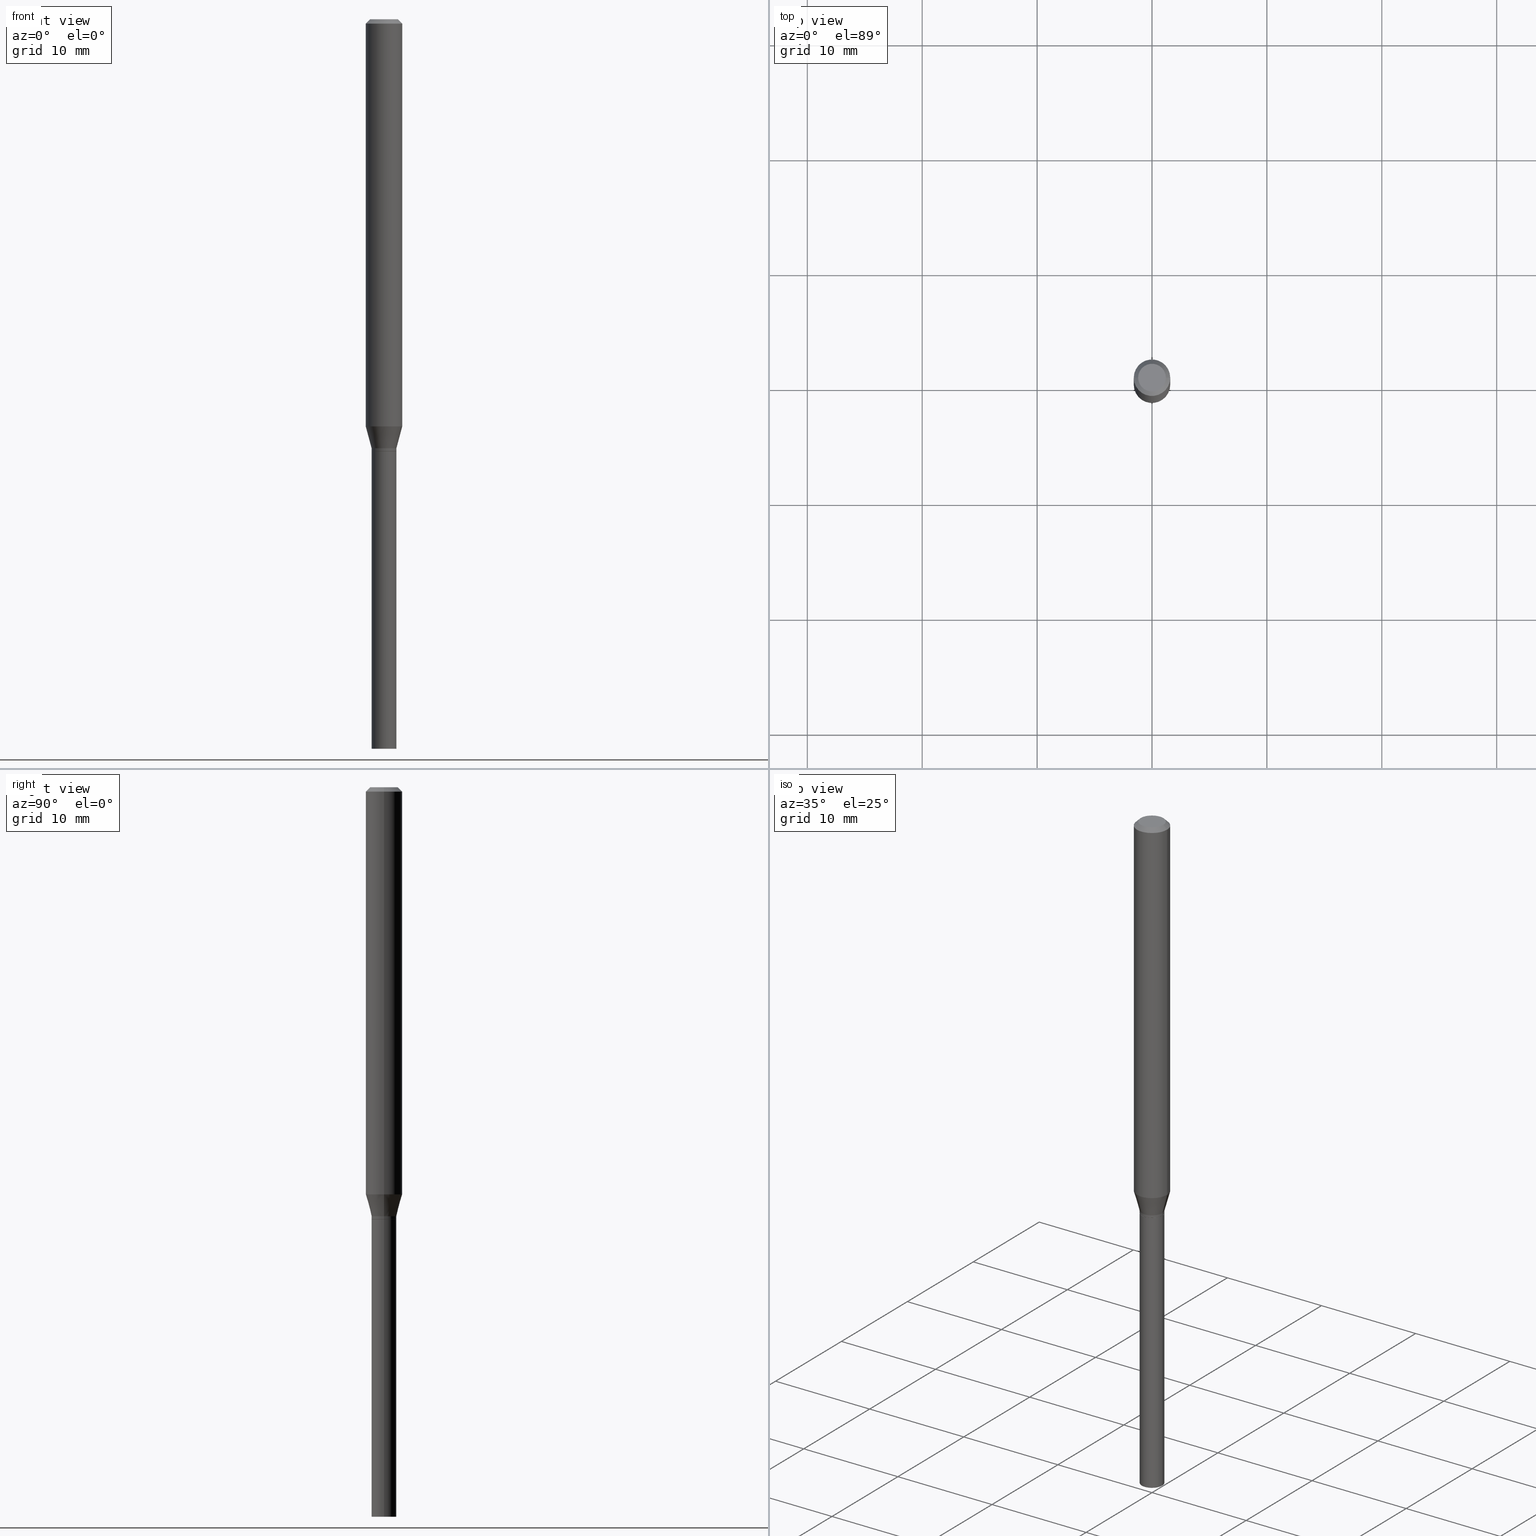
[diagram: canonical four-view strip — front | top / right | iso, engineering-drawing reading convention]
A machine part, canonical four-view strip (front | top / right | iso — engineering-drawing reading convention). The complete STEP part file that produces these views, byte-faithful:
ISO-10303-21;
HEADER;
FILE_DESCRIPTION (( 'STEP AP203' ),
    '1' );
FILE_NAME ('00657.STEP',
    '2024-03-19T22:22:21',
    ( '' ),
    ( '' ),
    'SwSTEP 2.0',
    'SolidWorks 2023',
    '' );
FILE_SCHEMA (( 'CONFIG_CONTROL_DESIGN' ));
ENDSEC;

DATA;
#1 = EDGE_CURVE ( 'NONE', #247, #172, #356, .T. ) ;
#2 = CARTESIAN_POINT ( 'NONE',  ( 6.113672015462842613E-29, -8.728703347107864943E-15, -2.500000000000000000 ) ) ;
#3 = VECTOR ( 'NONE', #42, 39.37007874015748143 ) ;
#4 = CIRCLE ( 'NONE', #323, 0.04249999999999999611 ) ;
#5 = CARTESIAN_POINT ( 'NONE',  ( 0.06250000000000000000, -4.811533449433679005E-16, -0.01499999999999999944 ) ) ;
#6 = CARTESIAN_POINT ( 'NONE',  ( 3.619293833154002365E-29, -5.167392381487854879E-15, -1.479999999999999982 ) ) ;
#7 = FACE_OUTER_BOUND ( 'NONE', #379, .T. ) ;
#8 = DIRECTION ( 'NONE',  ( 1.000000000000000000, -6.982962677686262766E-15, 0.000000000000000000 ) ) ;
#9 = CARTESIAN_POINT ( 'NONE',  ( 6.113672015462842613E-29, -8.728703347107864943E-15, -2.500000000000000000 ) ) ;
#10 = COORDINATED_UNIVERSAL_TIME_OFFSET ( 5, 0, .BEHIND. ) ;
#11 = CONICAL_SURFACE ( 'NONE', #221, 0.06250000000000000000, 0.7853981633974512766 ) ;
#12 = EDGE_CURVE ( 'NONE', #294, #452, #242, .T. ) ;
#13 = ORIENTED_EDGE ( 'NONE', *, *, #70, .F. ) ;
#14 = CARTESIAN_POINT ( 'NONE',  ( 0.000000000000000000, 0.000000000000000000, 0.000000000000000000 ) ) ;
#15 = CARTESIAN_POINT ( 'NONE',  ( 2.967759138017024946E-16, 0.04249999999999483358, -1.480000000000000426 ) ) ;
#16 = DIRECTION ( 'NONE',  ( -2.445468806185136597E-29, 3.491481338843145583E-15, 1.000000000000000000 ) ) ;
#17 = DIRECTION ( 'NONE',  ( 1.000000000000000000, -6.982962677686266711E-15, 0.000000000000000000 ) ) ;
#18 =( LENGTH_UNIT ( ) NAMED_UNIT ( * ) SI_UNIT ( $, .METRE. ) );
#19 = AXIS2_PLACEMENT_3D ( 'NONE', #14, #414, #176 ) ;
#20 = ORIENTED_EDGE ( 'NONE', *, *, #324, .F. ) ;
#21 = ORIENTED_EDGE ( 'NONE', *, *, #65, .T. ) ;
#22 = MECHANICAL_CONTEXT ( 'NONE', #173, 'mechanical' ) ;
#23 = CARTESIAN_POINT ( 'NONE',  ( -0.04250000000000020428, -4.830496905401379988E-15, -1.469999999999999973 ) ) ;
#24 = FACE_OUTER_BOUND ( 'NONE', #143, .T. ) ;
#25 =( NAMED_UNIT ( * ) SI_UNIT ( $, .STERADIAN. ) SOLID_ANGLE_UNIT ( ) );
#26 = DIRECTION ( 'NONE',  ( -0.2588190451025216277, 5.211531920934551831E-15, 0.9659258262890679791 ) ) ;
#27 = DIRECTION ( 'NONE',  ( -0.7071067811861793118, 7.493145998869024141E-15, 0.7071067811869157227 ) ) ;
#28 = ORIENTED_EDGE ( 'NONE', *, *, #49, .T. ) ;
#29 = ORIENTED_EDGE ( 'NONE', *, *, #450, .F. ) ;
#30 = CARTESIAN_POINT ( 'NONE',  ( -0.04249999999999999611, -6.646067201599817852E-15, -1.479999999999999982 ) ) ;
#31 = PERSON_AND_ORGANIZATION ( #120, #200 ) ;
#32 = EDGE_LOOP ( 'NONE', ( #94, #84, #264, #56 ) ) ;
#33 = DATE_AND_TIME ( #222, #38 ) ;
#34 = CARTESIAN_POINT ( 'NONE',  ( 3.619293833154002365E-29, -5.167392381487854879E-15, -1.479999999999999982 ) ) ;
#35 = CC_DESIGN_DATE_AND_TIME_ASSIGNMENT ( #301, #153, ( #68 ) ) ;
#36 = CARTESIAN_POINT ( 'NONE',  ( 0.04249999999999991979, -2.967759138016658126E-16, 2.072375129713268648E-30 ) ) ;
#37 = DATE_AND_TIME ( #148, #345 ) ;
#38 = LOCAL_TIME ( 18, 22, 21.00000000000000000, #230 ) ;
#39 = ORIENTED_EDGE ( 'NONE', *, *, #306, .T. ) ;
#40 = EDGE_CURVE ( 'NONE', #378, #407, #220, .T. ) ;
#41 = PERSON_AND_ORGANIZATION_ROLE ( 'creator' ) ;
#42 = DIRECTION ( 'NONE',  ( -2.445468806185136877E-29, 3.491481338843145188E-15, 1.000000000000000000 ) ) ;
#43 = AXIS2_PLACEMENT_3D ( 'NONE', #276, #274, #77 ) ;
#44 = DIRECTION ( 'NONE',  ( -2.445468806185136877E-29, 3.491481338843145188E-15, 1.000000000000000000 ) ) ;
#45 = EDGE_LOOP ( 'NONE', ( #170, #393, #291, #13 ) ) ;
#46 = FACE_OUTER_BOUND ( 'NONE', #32, .T. ) ;
#47 = DIRECTION ( 'NONE',  ( -2.445468806185136597E-29, 3.491481338843145583E-15, 1.000000000000000000 ) ) ;
#48 = AXIS2_PLACEMENT_3D ( 'NONE', #399, #403, #85 ) ;
#49 = EDGE_CURVE ( 'NONE', #442, #228, #311, .T. ) ;
#50 = FACE_OUTER_BOUND ( 'NONE', #139, .T. ) ;
#51 = ORIENTED_EDGE ( 'NONE', *, *, #273, .F. ) ;
#52 = CARTESIAN_POINT ( 'NONE',  ( 2.066805758436263276E-45, -2.950850862763961857E-31, -8.451572774957708509E-17 ) ) ;
#53 = DIRECTION ( 'NONE',  ( -2.445468806185136597E-29, 3.491481338843145583E-15, 1.000000000000000000 ) ) ;
#54 = ORIENTED_EDGE ( 'NONE', *, *, #212, .F. ) ;
#55 = CARTESIAN_POINT ( 'NONE',  ( 0.000000000000000000, 0.000000000000000000, 0.000000000000000000 ) ) ;
#56 = ORIENTED_EDGE ( 'NONE', *, *, #374, .F. ) ;
#57 = DIRECTION ( 'NONE',  ( 1.000000000000000000, -6.982962677686264344E-15, 0.000000000000000000 ) ) ;
#58 = AXIS2_PLACEMENT_3D ( 'NONE', #15, #87, #249 ) ;
#59 = DIRECTION ( 'NONE',  ( -2.445468806185136597E-29, 3.491481338843145583E-15, 1.000000000000000000 ) ) ;
#60 = ORIENTED_EDGE ( 'NONE', *, *, #343, .T. ) ;
#61 = CARTESIAN_POINT ( 'NONE',  ( 0.04250000000000020428, -5.429253481901091458E-15, -1.469999999999999973 ) ) ;
#62 = PLANE ( 'NONE',  #338 ) ;
#63 = LENGTH_MEASURE_WITH_UNIT ( LENGTH_MEASURE( 0.02539999999999999897 ), #18 );
#64 = CARTESIAN_POINT ( 'NONE',  ( 0.04249999999999999611, -2.967759138016663549E-16, 2.072375129713272502E-30 ) ) ;
#65 = EDGE_CURVE ( 'NONE', #98, #325, #283, .T. ) ;
#66 = AXIS2_PLACEMENT_3D ( 'NONE', #109, #371, #192 ) ;
#67 = AXIS2_PLACEMENT_3D ( 'NONE', #216, #422, #447 ) ;
#68 = SECURITY_CLASSIFICATION ( '', '', #189 ) ;
#69 = ORIENTED_EDGE ( 'NONE', *, *, #12, .F. ) ;
#70 = EDGE_CURVE ( 'NONE', #449, #442, #229, .T. ) ;
#71 = ADVANCED_FACE ( 'NONE', ( #154 ), #307, .T. ) ;
#72 = ORIENTED_EDGE ( 'NONE', *, *, #1, .F. ) ;
#73 = PERSON_AND_ORGANIZATION ( #120, #200 ) ;
#74 = DIRECTION ( 'NONE',  ( -2.445468806185136597E-29, 3.491481338843145583E-15, 1.000000000000000000 ) ) ;
#75 = DIRECTION ( 'NONE',  ( 1.000000000000000000, -6.982962677686263555E-15, 0.000000000000000000 ) ) ;
#76 = EDGE_LOOP ( 'NONE', ( #161, #142, #369, #297 ) ) ;
#77 = DIRECTION ( 'NONE',  ( 1.000000000000000000, -6.982962677686267499E-15, 4.876176775795935793E-29 ) ) ;
#78 = CIRCLE ( 'NONE', #199, 0.06250000000000000000 ) ;
#79 = LINE ( 'NONE', #196, #331 ) ;
#80 = CYLINDRICAL_SURFACE ( 'NONE', #385, 0.06250000000000000000 ) ;
#81 = CARTESIAN_POINT ( 'NONE',  ( -0.04250000000000020428, -4.629138774322960466E-15, -1.469999999999999973 ) ) ;
#82 = CARTESIAN_POINT ( 'NONE',  ( 3.668203209277705088E-31, -5.237222008264718399E-17, -0.01499999999999999944 ) ) ;
#83 = APPROVAL_PERSON_ORGANIZATION ( #131, #381, #424 ) ;
#84 = ORIENTED_EDGE ( 'NONE', *, *, #429, .T. ) ;
#85 = DIRECTION ( 'NONE',  ( 1.000000000000000000, -6.982962677686265133E-15, 0.000000000000000000 ) ) ;
#86 = CARTESIAN_POINT ( 'NONE',  ( 0.04199999999999999567, -5.460676813950679311E-15, -1.480000000000000426 ) ) ;
#87 = DIRECTION ( 'NONE',  ( 2.438088387897960049E-29, -3.491481338843145188E-15, -1.000000000000000000 ) ) ;
#88 = DIRECTION ( 'NONE',  ( -2.445468806185136597E-29, 3.491481338843145583E-15, 1.000000000000000000 ) ) ;
#89 = CARTESIAN_POINT ( 'NONE',  ( 3.594839145092150259E-29, -5.132477568099423229E-15, -1.469999999999999973 ) ) ;
#90 = CARTESIAN_POINT ( 'NONE',  ( 2.066805758436263276E-45, -2.950850862763961857E-31, -8.451572774957708509E-17 ) ) ;
#91 = ORIENTED_EDGE ( 'NONE', *, *, #273, .T. ) ;
#92 = EDGE_LOOP ( 'NONE', ( #364, #351, #418, #354 ) ) ;
#93 = VECTOR ( 'NONE', #423, 39.37007874015748143 ) ;
#94 = ORIENTED_EDGE ( 'NONE', *, *, #112, .F. ) ;
#95 = CARTESIAN_POINT ( 'NONE',  ( 3.316907271900976096E-16, 0.04749999999999999362, -2.081032274698379328E-16 ) ) ;
#96 = EDGE_CURVE ( 'NONE', #172, #325, #79, .T. ) ;
#97 = LINE ( 'NONE', #86, #122 ) ;
#98 = VERTEX_POINT ( 'NONE', #245 ) ;
#99 = ORIENTED_EDGE ( 'NONE', *, *, #267, .F. ) ;
#100 = DIRECTION ( 'NONE',  ( 1.000000000000000000, -6.982962677686276177E-15, 0.000000000000000000 ) ) ;
#101 = APPROVAL_ROLE ( '' ) ;
#102 = AXIS2_PLACEMENT_3D ( 'NONE', #241, #163, #234 ) ;
#103 = DIRECTION ( 'NONE',  ( 1.000000000000000000, -6.982962677686267499E-15, 4.876176775795935793E-29 ) ) ;
#104 = ORIENTED_EDGE ( 'NONE', *, *, #70, .T. ) ;
#105 = APPROVAL_DATE_TIME ( #33, #312 ) ;
#106 = ORIENTED_EDGE ( 'NONE', *, *, #1, .T. ) ;
#107 = CLOSED_SHELL ( 'NONE', ( #373, #191, #71, #327 ) ) ;
#108 = VECTOR ( 'NONE', #240, 39.37007874015748143 ) ;
#109 = CARTESIAN_POINT ( 'NONE',  ( 3.619293833154002365E-29, -5.167392381487854879E-15, -1.479999999999999982 ) ) ;
#110 = DIRECTION ( 'NONE',  ( 1.000000000000000000, -6.982962677686266711E-15, 4.876176775795935793E-29 ) ) ;
#111 = DIRECTION ( 'NONE',  ( -2.445468806185136597E-29, 3.491481338843145583E-15, 1.000000000000000000 ) ) ;
#112 = EDGE_CURVE ( 'NONE', #286, #225, #435, .T. ) ;
#113 = CARTESIAN_POINT ( 'NONE',  ( -0.04249999999999999611, -6.646067201599817852E-15, -2.500000000000000000 ) ) ;
#114 = PERSON_AND_ORGANIZATION_ROLE ( 'classification_officer' ) ;
#115 = CC_DESIGN_DATE_AND_TIME_ASSIGNMENT ( #390, #367, ( #127 ) ) ;
#116 = DIRECTION ( 'NONE',  ( 1.000000000000000000, -6.982962677686264344E-15, 0.000000000000000000 ) ) ;
#117 = CARTESIAN_POINT ( 'NONE',  ( 0.000000000000000000, 0.000000000000000000, 0.000000000000000000 ) ) ;
#118 = EDGE_CURVE ( 'NONE', #250, #281, #349, .T. ) ;
#119 = LINE ( 'NONE', #428, #412 ) ;
#120 = PERSON ( 'UNSPECIFIED', 'UNSPECIFIED', 'UNSPECIFIED', ('UNSPECIFIED'), ('UNSPECIFIED'), ('UNSPECIFIED') ) ;
#121 = EDGE_CURVE ( 'NONE', #325, #98, #425, .T. ) ;
#122 = VECTOR ( 'NONE', #287, 39.37007874015748143 ) ;
#123 = DIRECTION ( 'NONE',  ( 1.000000000000000000, -6.982962677686267499E-15, 4.876176775795935232E-29 ) ) ;
#124 = CARTESIAN_POINT ( 'NONE',  ( -0.04199999999999999567, -4.866315205294504490E-15, -1.480000000000000426 ) ) ;
#125 = DIRECTION ( 'NONE',  ( 1.000000000000000000, -6.982962677686265922E-15, 4.876176775795935793E-29 ) ) ;
#126 = ORIENTED_EDGE ( 'NONE', *, *, #290, .F. ) ;
#127 = PRODUCT_DEFINITION ( 'UNKNOWN', '', #209, #302 ) ;
#128 = CARTESIAN_POINT ( 'NONE',  ( 0.06250000000000000000, -4.888073874380388472E-16, -0.01499999999999999944 ) ) ;
#129 = ORIENTED_EDGE ( 'NONE', *, *, #310, .T. ) ;
#130 = FACE_OUTER_BOUND ( 'NONE', #214, .T. ) ;
#131 = PERSON_AND_ORGANIZATION ( #120, #200 ) ;
#132 = ORIENTED_EDGE ( 'NONE', *, *, #271, .T. ) ;
#133 = MANIFOLD_SOLID_BREP ( 'Body-Move/Copy2[1]', #107 ) ;
#134 = AXIS2_PLACEMENT_3D ( 'NONE', #82, #278, #198 ) ;
#135 = DIRECTION ( 'NONE',  ( 0.7071067811865496822, -7.319954787623263934E-15, -0.7071067811865454633 ) ) ;
#136 = CC_DESIGN_APPROVAL ( #312, ( #209 ) ) ;
#137 = CARTESIAN_POINT ( 'NONE',  ( 3.619293833154002926E-29, -5.167392381487856456E-15, -1.480000000000000426 ) ) ;
#138 = ADVANCED_FACE ( 'NONE', ( #24 ), #260, .F. ) ;
#139 = EDGE_LOOP ( 'NONE', ( #251, #60, #51, #99 ) ) ;
#140 = MANIFOLD_SOLID_BREP ( 'Body-Move/Copy2[2]', #259 ) ;
#141 = ORIENTED_EDGE ( 'NONE', *, *, #40, .T. ) ;
#142 = ORIENTED_EDGE ( 'NONE', *, *, #453, .T. ) ;
#143 = EDGE_LOOP ( 'NONE', ( #69, #300 ) ) ;
#144 = CARTESIAN_POINT ( 'NONE',  ( -0.04249999999999964917, -4.863665978120394078E-15, -1.479500000000000259 ) ) ;
#145 = EDGE_CURVE ( 'NONE', #247, #98, #169, .T. ) ;
#146 = AXIS2_PLACEMENT_3D ( 'NONE', #6, #152, #100 ) ;
#147 = AXIS2_PLACEMENT_3D ( 'NONE', #137, #190, #235 ) ;
#148 = CALENDAR_DATE ( 2024, 19, 3 ) ;
#149 = ORIENTED_EDGE ( 'NONE', *, *, #232, .T. ) ;
#150 = CARTESIAN_POINT ( 'NONE',  ( 3.412306868431998171E-29, -4.871869853094602771E-15, -1.395358983848623335 ) ) ;
#151 = LOCAL_TIME ( 18, 22, 21.00000000000000000, #10 ) ;
#152 = DIRECTION ( 'NONE',  ( -2.445468806185136597E-29, 3.491481338843145583E-15, 1.000000000000000000 ) ) ;
#153 = DATE_TIME_ROLE ( 'classification_date' ) ;
#154 = FACE_OUTER_BOUND ( 'NONE', #92, .T. ) ;
#155 = PERSON_AND_ORGANIZATION_ROLE ( 'creator' ) ;
#156 = EDGE_CURVE ( 'NONE', #378, #281, #440, .T. ) ;
#157 = CC_DESIGN_APPROVAL ( #319, ( #68 ) ) ;
#158 = CC_DESIGN_PERSON_AND_ORGANIZATION_ASSIGNMENT ( #31, #451, ( #246 ) ) ;
#159 = ADVANCED_BREP_SHAPE_REPRESENTATION ( '00657', ( #133, #140, #19 ), #444 ) ;
#160 = DIRECTION ( 'NONE',  ( -2.445468806185136597E-29, 3.491481338843145583E-15, 1.000000000000000000 ) ) ;
#161 = ORIENTED_EDGE ( 'NONE', *, *, #310, .F. ) ;
#162 = PRODUCT_DEFINITION_SHAPE ( 'NONE', 'NONE',  #127 ) ;
#163 = DIRECTION ( 'NONE',  ( -2.445468806185136597E-29, 3.491481338843145583E-15, 1.000000000000000000 ) ) ;
#164 = FACE_OUTER_BOUND ( 'NONE', #458, .T. ) ;
#165 = ADVANCED_FACE ( 'NONE', ( #50 ), #357, .T. ) ;
#166 = ORIENTED_EDGE ( 'NONE', *, *, #145, .F. ) ;
#167 = AXIS2_PLACEMENT_3D ( 'NONE', #406, #411, #75 ) ;
#168 = AXIS2_PLACEMENT_3D ( 'NONE', #284, #446, #125 ) ;
#169 = LINE ( 'NONE', #64, #315 ) ;
#170 = ORIENTED_EDGE ( 'NONE', *, *, #343, .F. ) ;
#171 = DIRECTION ( 'NONE',  ( 1.000000000000000000, -6.982962677686266711E-15, 4.876176775795935793E-29 ) ) ;
#172 = VERTEX_POINT ( 'NONE', #113 ) ;
#173 = APPLICATION_CONTEXT ( 'configuration controlled 3d designs of mechanical parts and assemblies' ) ;
#174 = CARTESIAN_POINT ( 'NONE',  ( 3.618071098750910124E-29, -5.165646640818434953E-15, -1.479500000000000259 ) ) ;
#175 = ADVANCED_FACE ( 'NONE', ( #194 ), #80, .T. ) ;
#176 = DIRECTION ( 'NONE',  ( 1.000000000000000000, 0.000000000000000000, 0.000000000000000000 ) ) ;
#177 = ORIENTED_EDGE ( 'NONE', *, *, #156, .F. ) ;
#178 = ORIENTED_EDGE ( 'NONE', *, *, #118, .F. ) ;
#179 = ORIENTED_EDGE ( 'NONE', *, *, #293, .T. ) ;
#180 = AXIS2_PLACEMENT_3D ( 'NONE', #55, #202, #123 ) ;
#181 = LOCAL_TIME ( 18, 22, 21.00000000000000000, #224 ) ;
#182 = COORDINATED_UNIVERSAL_TIME_OFFSET ( 5, 0, .BEHIND. ) ;
#183 = DIRECTION ( 'NONE',  ( -2.438088387897960049E-29, 3.491481338843145188E-15, 1.000000000000000000 ) ) ;
#184 = PERSON_AND_ORGANIZATION ( #120, #200 ) ;
#185 = PRODUCT_RELATED_PRODUCT_CATEGORY ( 'detail', '', ( #246 ) ) ;
#186 = PERSON_AND_ORGANIZATION ( #120, #200 ) ;
#187 = AXIS2_PLACEMENT_3D ( 'NONE', #197, #346, #116 ) ;
#188 = CIRCLE ( 'NONE', #134, 0.06250000000000000000 ) ;
#189 = SECURITY_CLASSIFICATION_LEVEL ( 'unclassified' ) ;
#190 = DIRECTION ( 'NONE',  ( -2.445468806185136597E-29, 3.491481338843145583E-15, 1.000000000000000000 ) ) ;
#191 = ADVANCED_FACE ( 'NONE', ( #7 ), #372, .F. ) ;
#192 = DIRECTION ( 'NONE',  ( 1.000000000000000000, -6.982962677686276177E-15, 0.000000000000000000 ) ) ;
#193 = CIRCLE ( 'NONE', #208, 0.04199999999999999567 ) ;
#194 = FACE_OUTER_BOUND ( 'NONE', #391, .T. ) ;
#195 = PERSON_AND_ORGANIZATION ( #120, #200 ) ;
#196 = CARTESIAN_POINT ( 'NONE',  ( -0.04249999999999999611, 3.019806626980425514E-16, -2.090547413358334859E-30 ) ) ;
#197 = CARTESIAN_POINT ( 'NONE',  ( 3.618071098750910124E-29, -5.165646640818434953E-15, -1.479500000000000259 ) ) ;
#198 = DIRECTION ( 'NONE',  ( 1.000000000000000000, -6.982962677686266711E-15, 0.000000000000000000 ) ) ;
#199 = AXIS2_PLACEMENT_3D ( 'NONE', #402, #339, #201 ) ;
#200 = ORGANIZATION ( 'UNSPECIFIED', 'UNSPECIFIED', '' ) ;
#201 = DIRECTION ( 'NONE',  ( 1.000000000000000000, -6.982962677686262766E-15, 0.000000000000000000 ) ) ;
#202 = DIRECTION ( 'NONE',  ( -2.445468806185136597E-29, 3.491481338843145583E-15, 1.000000000000000000 ) ) ;
#203 = APPLICATION_PROTOCOL_DEFINITION ( 'international standard', 'config_control_design', 1994, #341 ) ;
#204 = CARTESIAN_POINT ( 'NONE',  ( -0.04749999999999999362, 3.578768372314209027E-16, -8.451572774957950098E-17 ) ) ;
#205 = LINE ( 'NONE', #5, #430 ) ;
#206 =( NAMED_UNIT ( * ) PLANE_ANGLE_UNIT ( ) SI_UNIT ( $, .RADIAN. ) );
#207 = ORIENTED_EDGE ( 'NONE', *, *, #389, .T. ) ;
#208 = AXIS2_PLACEMENT_3D ( 'NONE', #348, #248, #380 ) ;
#209 = PRODUCT_DEFINITION_FORMATION_WITH_SPECIFIED_SOURCE ( 'ANY', '', #246, .NOT_KNOWN. ) ;
#210 = DIRECTION ( 'NONE',  ( -1.000000000000000000, 6.982962677686265922E-15, -4.876176775795935793E-29 ) ) ;
#211 = LINE ( 'NONE', #320, #270 ) ;
#212 = EDGE_CURVE ( 'NONE', #228, #360, #188, .T. ) ;
#213 =( CONVERSION_BASED_UNIT ( 'INCH', #63 ) LENGTH_UNIT ( ) NAMED_UNIT ( #421 ) );
#214 = EDGE_LOOP ( 'NONE', ( #21, #464 ) ) ;
#215 = CC_DESIGN_PERSON_AND_ORGANIZATION_ASSIGNMENT ( #333, #114, ( #68 ) ) ;
#216 = CARTESIAN_POINT ( 'NONE',  ( 0.000000000000000000, 0.000000000000000000, 0.000000000000000000 ) ) ;
#217 = DIRECTION ( 'NONE',  ( -2.445468806185136877E-29, 3.491481338843145188E-15, 1.000000000000000000 ) ) ;
#218 = UNCERTAINTY_MEASURE_WITH_UNIT (LENGTH_MEASURE( 1.000000000000000082E-05 ), #213, 'distance_accuracy_value', 'NONE');
#219 = LINE ( 'NONE', #362, #93 ) ;
#220 = CIRCLE ( 'NONE', #187, 0.04249999999999964917 ) ;
#221 = AXIS2_PLACEMENT_3D ( 'NONE', #413, #298, #313 ) ;
#222 = CALENDAR_DATE ( 2024, 19, 3 ) ;
#223 = EDGE_LOOP ( 'NONE', ( #149, #295, #178, #382 ) ) ;
#224 = COORDINATED_UNIVERSAL_TIME_OFFSET ( 5, 0, .BEHIND. ) ;
#225 = VERTEX_POINT ( 'NONE', #204 ) ;
#226 = EDGE_LOOP ( 'NONE', ( #106, #244, #252, #166 ) ) ;
#227 = APPROVAL_STATUS ( 'not_yet_approved' ) ;
#228 = VERTEX_POINT ( 'NONE', #128 ) ;
#229 = CIRCLE ( 'NONE', #337, 0.06250000000000000000 ) ;
#230 = COORDINATED_UNIVERSAL_TIME_OFFSET ( 5, 0, .BEHIND. ) ;
#231 = VECTOR ( 'NONE', #439, 39.37007874015748143 ) ;
#232 = EDGE_CURVE ( 'NONE', #407, #378, #417, .T. ) ;
#233 = CC_DESIGN_PERSON_AND_ORGANIZATION_ASSIGNMENT ( #195, #155, ( #209 ) ) ;
#234 = DIRECTION ( 'NONE',  ( 1.000000000000000000, -6.982962677686265133E-15, 0.000000000000000000 ) ) ;
#235 = DIRECTION ( 'NONE',  ( 1.000000000000000000, -6.982962677686263555E-15, 0.000000000000000000 ) ) ;
#236 = AXIS2_PLACEMENT_3D ( 'NONE', #288, #415, #448 ) ;
#237 = APPROVAL_STATUS ( 'not_yet_approved' ) ;
#238 = CARTESIAN_POINT ( 'NONE',  ( 0.06250000000000000000, -4.364351673553916694E-16, 3.047610484872459871E-30 ) ) ;
#239 = DIRECTION ( 'NONE',  ( -2.445468806185136597E-29, 3.491481338843145583E-15, 1.000000000000000000 ) ) ;
#240 = DIRECTION ( 'NONE',  ( -2.445468806185136877E-29, 3.491481338843145188E-15, 1.000000000000000000 ) ) ;
#241 = CARTESIAN_POINT ( 'NONE',  ( 3.594839145092150259E-29, -5.132477568099423229E-15, -1.469999999999999973 ) ) ;
#242 = CIRCLE ( 'NONE', #167, 0.04199999999999999567 ) ;
#243 = AXIS2_PLACEMENT_3D ( 'NONE', #89, #53, #355 ) ;
#244 = ORIENTED_EDGE ( 'NONE', *, *, #96, .T. ) ;
#245 = CARTESIAN_POINT ( 'NONE',  ( 0.04249999999999999611, -5.464168295289522318E-15, -1.479999999999999982 ) ) ;
#246 = PRODUCT ( '00657', '00657', '', ( #22 ) ) ;
#247 = VERTEX_POINT ( 'NONE', #254 ) ;
#248 = DIRECTION ( 'NONE',  ( -2.445468806185136597E-29, 3.491481338843145583E-15, 1.000000000000000000 ) ) ;
#249 = DIRECTION ( 'NONE',  ( -1.000000000000000000, 6.982962677686265922E-15, -4.876176775795935793E-29 ) ) ;
#250 = VERTEX_POINT ( 'NONE', #61 ) ;
#251 = ORIENTED_EDGE ( 'NONE', *, *, #118, .T. ) ;
#252 = ORIENTED_EDGE ( 'NONE', *, *, #65, .F. ) ;
#253 = AXIS2_PLACEMENT_3D ( 'NONE', #90, #59, #282 ) ;
#254 = CARTESIAN_POINT ( 'NONE',  ( 0.04249999999999999611, -9.025479260909530016E-15, -2.500000000000000000 ) ) ;
#255 = FACE_OUTER_BOUND ( 'NONE', #459, .T. ) ;
#256 = LINE ( 'NONE', #23, #377 ) ;
#257 = FACE_OUTER_BOUND ( 'NONE', #226, .T. ) ;
#258 = ORIENTED_EDGE ( 'NONE', *, *, #271, .F. ) ;
#259 = CLOSED_SHELL ( 'NONE', ( #433, #332, #305, #434, #165, #437, #175, #431, #441, #138, #316, #410 ) ) ;
#260 = PLANE ( 'NONE',  #275 ) ;
#261 = CONICAL_SURFACE ( 'NONE', #147, 0.04199999999999999567, 0.7853981633969275844 ) ;
#262 = APPROVAL_ROLE ( '' ) ;
#263 = CARTESIAN_POINT ( 'NONE',  ( -0.06250000000000000000, -2.018031826738562901E-15, -0.01499999999999999944 ) ) ;
#264 = ORIENTED_EDGE ( 'NONE', *, *, #212, .T. ) ;
#265 = PERSON_AND_ORGANIZATION ( #120, #200 ) ;
#266 = DATE_AND_TIME ( #335, #462 ) ;
#267 = EDGE_CURVE ( 'NONE', #250, #442, #321, .T. ) ;
#268 = EDGE_LOOP ( 'NONE', ( #39, #303 ) ) ;
#269 = CARTESIAN_POINT ( 'NONE',  ( 0.04199999999999999567, -5.460676813950679311E-15, -1.480000000000000426 ) ) ;
#270 = VECTOR ( 'NONE', #27, 39.37007874015748143 ) ;
#271 = EDGE_CURVE ( 'NONE', #449, #360, #119, .T. ) ;
#272 = CYLINDRICAL_SURFACE ( 'NONE', #180, 0.04249999999999991979 ) ;
#273 = EDGE_CURVE ( 'NONE', #442, #449, #78, .T. ) ;
#274 = DIRECTION ( 'NONE',  ( -2.445468806185136597E-29, 3.491481338843145583E-15, 1.000000000000000000 ) ) ;
#275 = AXIS2_PLACEMENT_3D ( 'NONE', #34, #183, #330 ) ;
#276 = CARTESIAN_POINT ( 'NONE',  ( 0.000000000000000000, 0.000000000000000000, 0.000000000000000000 ) ) ;
#277 = CC_DESIGN_SECURITY_CLASSIFICATION ( #68, ( #209 ) ) ;
#278 = DIRECTION ( 'NONE',  ( -2.445468806185136597E-29, 3.491481338843145583E-15, 1.000000000000000000 ) ) ;
#279 = CARTESIAN_POINT ( 'NONE',  ( 3.668203209277705088E-31, -5.237222008264718399E-17, -0.01499999999999999944 ) ) ;
#280 = DIRECTION ( 'NONE',  ( -1.000000000000000000, 6.982962677686266711E-15, 0.000000000000000000 ) ) ;
#281 = VERTEX_POINT ( 'NONE', #81 ) ;
#282 = DIRECTION ( 'NONE',  ( 1.000000000000000000, -6.982962677686267499E-15, 4.884662768193073002E-29 ) ) ;
#283 = CIRCLE ( 'NONE', #66, 0.04249999999999999611 ) ;
#284 = CARTESIAN_POINT ( 'NONE',  ( 6.198122052593289668E-29, -8.607766087339451973E-15, -2.500000000000000000 ) ) ;
#285 = CONICAL_SURFACE ( 'NONE', #436, 0.06250000000000000000, 0.7853981633974512766 ) ;
#286 = VERTEX_POINT ( 'NONE', #347 ) ;
#287 = DIRECTION ( 'NONE',  ( 0.7071067811861793118, -2.468850131078399925E-15, 0.7071067811869157227 ) ) ;
#288 = CARTESIAN_POINT ( 'NONE',  ( 3.619293833154002926E-29, -5.167392381487856456E-15, -1.480000000000000426 ) ) ;
#289 = ORIENTED_EDGE ( 'NONE', *, *, #429, .F. ) ;
#290 = EDGE_CURVE ( 'NONE', #172, #247, #4, .T. ) ;
#291 = ORIENTED_EDGE ( 'NONE', *, *, #267, .T. ) ;
#292 = CYLINDRICAL_SURFACE ( 'NONE', #67, 0.04249999999999991979 ) ;
#293 = EDGE_CURVE ( 'NONE', #360, #228, #401, .T. ) ;
#294 = VERTEX_POINT ( 'NONE', #269 ) ;
#295 = ORIENTED_EDGE ( 'NONE', *, *, #156, .T. ) ;
#296 = CIRCLE ( 'NONE', #253, 0.04749999999999999362 ) ;
#297 = ORIENTED_EDGE ( 'NONE', *, *, #40, .F. ) ;
#298 = DIRECTION ( 'NONE',  ( 2.445468806185136597E-29, -3.491481338843145583E-15, -1.000000000000000000 ) ) ;
#299 = FACE_OUTER_BOUND ( 'NONE', #223, .T. ) ;
#300 = ORIENTED_EDGE ( 'NONE', *, *, #453, .F. ) ;
#301 = DATE_AND_TIME ( #427, #181 ) ;
#302 = DESIGN_CONTEXT ( 'detailed design', #341, 'design' ) ;
#303 = ORIENTED_EDGE ( 'NONE', *, *, #112, .T. ) ;
#304 = CC_DESIGN_PERSON_AND_ORGANIZATION_ASSIGNMENT ( #265, #41, ( #127 ) ) ;
#305 = ADVANCED_FACE ( 'NONE', ( #46 ), #285, .T. ) ;
#306 = EDGE_CURVE ( 'NONE', #225, #286, #296, .T. ) ;
#307 = CYLINDRICAL_SURFACE ( 'NONE', #43, 0.04249999999999999611 ) ;
#308 = DIRECTION ( 'NONE',  ( 1.000000000000000000, -6.982962677686254089E-15, 0.000000000000000000 ) ) ;
#309 = CIRCLE ( 'NONE', #48, 0.04250000000000020428 ) ;
#310 = EDGE_CURVE ( 'NONE', #452, #378, #211, .T. ) ;
#311 = LINE ( 'NONE', #238, #3 ) ;
#312 = APPROVAL ( #237, 'UNSPECIFIED' ) ;
#313 = DIRECTION ( 'NONE',  ( -1.000000000000000000, 6.982962677686266711E-15, 0.000000000000000000 ) ) ;
#314 = AXIS2_PLACEMENT_3D ( 'NONE', #466, #404, #370 ) ;
#315 = VECTOR ( 'NONE', #217, 39.37007874015748143 ) ;
#316 = ADVANCED_FACE ( 'NONE', ( #322 ), #261, .T. ) ;
#317 = DIRECTION ( 'NONE',  ( 1.000000000000000000, -6.982962677686254089E-15, 0.000000000000000000 ) ) ;
#318 = ORIENTED_EDGE ( 'NONE', *, *, #374, .T. ) ;
#319 = APPROVAL ( #463, 'UNSPECIFIED' ) ;
#320 = CARTESIAN_POINT ( 'NONE',  ( -0.04199999999999999567, -4.868964432468614113E-15, -1.480000000000000426 ) ) ;
#321 = LINE ( 'NONE', #419, #231 ) ;
#322 = FACE_OUTER_BOUND ( 'NONE', #76, .T. ) ;
#323 = AXIS2_PLACEMENT_3D ( 'NONE', #9, #111, #317 ) ;
#324 = EDGE_CURVE ( 'NONE', #281, #250, #309, .T. ) ;
#325 = VERTEX_POINT ( 'NONE', #30 ) ;
#326 = ORIENTED_EDGE ( 'NONE', *, *, #12, .T. ) ;
#327 = ADVANCED_FACE ( 'NONE', ( #130 ), #438, .F. ) ;
#328 = DIRECTION ( 'NONE',  ( -2.445468806185136597E-29, 3.491481338843145583E-15, 1.000000000000000000 ) ) ;
#329 = ORIENTED_EDGE ( 'NONE', *, *, #232, .F. ) ;
#330 = DIRECTION ( 'NONE',  ( 1.000000000000000000, -6.982962677686265922E-15, 4.876176775795935793E-29 ) ) ;
#331 = VECTOR ( 'NONE', #44, 39.37007874015748143 ) ;
#332 = ADVANCED_FACE ( 'NONE', ( #383 ), #366, .T. ) ;
#333 = PERSON_AND_ORGANIZATION ( #120, #200 ) ;
#334 = DIRECTION ( 'NONE',  ( 1.000000000000000000, -6.982962677686267499E-15, 4.884662768193073002E-29 ) ) ;
#335 = CALENDAR_DATE ( 2024, 19, 3 ) ;
#336 = FACE_OUTER_BOUND ( 'NONE', #398, .T. ) ;
#337 = AXIS2_PLACEMENT_3D ( 'NONE', #150, #47, #8 ) ;
#338 = AXIS2_PLACEMENT_3D ( 'NONE', #95, #457, #210 ) ;
#339 = DIRECTION ( 'NONE',  ( -2.445468806185136597E-29, 3.491481338843145583E-15, 1.000000000000000000 ) ) ;
#340 = PERSON_AND_ORGANIZATION_ROLE ( 'design_supplier' ) ;
#341 = APPLICATION_CONTEXT ( 'configuration controlled 3d designs of mechanical parts and assemblies' ) ;
#342 = CARTESIAN_POINT ( 'NONE',  ( -0.04249999999999991979, 3.019806626980420090E-16, -2.090547413358331006E-30 ) ) ;
#343 = EDGE_CURVE ( 'NONE', #281, #449, #256, .T. ) ;
#344 = AXIS2_PLACEMENT_3D ( 'NONE', #392, #328, #103 ) ;
#345 = LOCAL_TIME ( 18, 22, 21.00000000000000000, #363 ) ;
#346 = DIRECTION ( 'NONE',  ( -2.445468806185136597E-29, 3.491481338843145583E-15, 1.000000000000000000 ) ) ;
#347 = CARTESIAN_POINT ( 'NONE',  ( 0.04749999999999999362, -4.035134999187580102E-16, -8.451572774957450897E-17 ) ) ;
#348 = CARTESIAN_POINT ( 'NONE',  ( 3.619293833154002926E-29, -5.167392381487856456E-15, -1.480000000000000426 ) ) ;
#349 = CIRCLE ( 'NONE', #314, 0.04250000000000020428 ) ;
#350 = AXIS2_PLACEMENT_3D ( 'NONE', #174, #88, #57 ) ;
#351 = ORIENTED_EDGE ( 'NONE', *, *, #290, .T. ) ;
#352 = APPLICATION_PROTOCOL_DEFINITION ( 'international standard', 'config_control_design', 1994, #173 ) ;
#353 = CARTESIAN_POINT ( 'NONE',  ( -0.06250000000000000000, -4.427780643244540155E-15, -1.395358983848623335 ) ) ;
#354 = ORIENTED_EDGE ( 'NONE', *, *, #121, .F. ) ;
#355 = DIRECTION ( 'NONE',  ( 1.000000000000000000, -6.982962677686265133E-15, 0.000000000000000000 ) ) ;
#356 = CIRCLE ( 'NONE', #376, 0.04249999999999999611 ) ;
#357 = CONICAL_SURFACE ( 'NONE', #102, 0.04250000000000020428, 0.2617993877991502960 ) ;
#358 = CYLINDRICAL_SURFACE ( 'NONE', #344, 0.04249999999999999611 ) ;
#359 = APPROVAL_DATE_TIME ( #37, #381 ) ;
#360 = VERTEX_POINT ( 'NONE', #263 ) ;
#361 = SHAPE_DEFINITION_REPRESENTATION ( #162, #159 ) ;
#362 = CARTESIAN_POINT ( 'NONE',  ( -0.06250000000000000000, 3.840629472727444916E-16, -0.01499999999999999944 ) ) ;
#363 = COORDINATED_UNIVERSAL_TIME_OFFSET ( 5, 0, .BEHIND. ) ;
#364 = ORIENTED_EDGE ( 'NONE', *, *, #96, .F. ) ;
#365 = AXIS2_PLACEMENT_3D ( 'NONE', #387, #386, #171 ) ;
#366 = CONICAL_SURFACE ( 'NONE', #236, 0.04199999999999999567, 0.7853981633969275844 ) ;
#367 = DATE_TIME_ROLE ( 'creation_date' ) ;
#368 = CARTESIAN_POINT ( 'NONE',  ( 0.04249999999999964917, -5.462422554620097659E-15, -1.479500000000000259 ) ) ;
#369 = ORIENTED_EDGE ( 'NONE', *, *, #450, .T. ) ;
#370 = DIRECTION ( 'NONE',  ( 1.000000000000000000, -6.982962677686265133E-15, 0.000000000000000000 ) ) ;
#371 = DIRECTION ( 'NONE',  ( -2.445468806185136597E-29, 3.491481338843145583E-15, 1.000000000000000000 ) ) ;
#372 = PLANE ( 'NONE',  #168 ) ;
#373 = ADVANCED_FACE ( 'NONE', ( #257 ), #358, .T. ) ;
#374 = EDGE_CURVE ( 'NONE', #225, #360, #219, .T. ) ;
#375 = DIRECTION ( 'NONE',  ( 2.445468806185136597E-29, -3.491481338843145583E-15, -1.000000000000000000 ) ) ;
#376 = AXIS2_PLACEMENT_3D ( 'NONE', #2, #160, #308 ) ;
#377 = VECTOR ( 'NONE', #26, 39.37007874015748143 ) ;
#378 = VERTEX_POINT ( 'NONE', #144 ) ;
#379 = EDGE_LOOP ( 'NONE', ( #72, #126 ) ) ;
#380 = DIRECTION ( 'NONE',  ( 1.000000000000000000, -6.982962677686263555E-15, 0.000000000000000000 ) ) ;
#381 = APPROVAL ( #227, 'UNSPECIFIED' ) ;
#382 = ORIENTED_EDGE ( 'NONE', *, *, #389, .F. ) ;
#383 = FACE_OUTER_BOUND ( 'NONE', #405, .T. ) ;
#384 = CARTESIAN_POINT ( 'NONE',  ( 3.668203209277705088E-31, -5.237222008264718399E-17, -0.01499999999999999944 ) ) ;
#385 = AXIS2_PLACEMENT_3D ( 'NONE', #117, #239, #110 ) ;
#386 = DIRECTION ( 'NONE',  ( -2.445468806185136597E-29, 3.491481338843145583E-15, 1.000000000000000000 ) ) ;
#387 = CARTESIAN_POINT ( 'NONE',  ( 0.000000000000000000, 0.000000000000000000, 0.000000000000000000 ) ) ;
#388 = ORIENTED_EDGE ( 'NONE', *, *, #293, .F. ) ;
#389 = EDGE_CURVE ( 'NONE', #407, #250, #396, .T. ) ;
#390 = DATE_AND_TIME ( #432, #151 ) ;
#391 = EDGE_LOOP ( 'NONE', ( #258, #104, #28, #388 ) ) ;
#392 = CARTESIAN_POINT ( 'NONE',  ( 0.000000000000000000, 0.000000000000000000, 0.000000000000000000 ) ) ;
#393 = ORIENTED_EDGE ( 'NONE', *, *, #324, .T. ) ;
#394 = APPROVAL_DATE_TIME ( #266, #319 ) ;
#395 = ORIENTED_EDGE ( 'NONE', *, *, #306, .F. ) ;
#396 = LINE ( 'NONE', #36, #408 ) ;
#397 = ORIENTED_EDGE ( 'NONE', *, *, #49, .F. ) ;
#398 = EDGE_LOOP ( 'NONE', ( #177, #141, #207, #20 ) ) ;
#399 = CARTESIAN_POINT ( 'NONE',  ( 3.594839145092150259E-29, -5.132477568099423229E-15, -1.469999999999999973 ) ) ;
#400 = DIRECTION ( 'NONE',  ( -2.445468806185136877E-29, 3.491481338843145188E-15, 1.000000000000000000 ) ) ;
#401 = CIRCLE ( 'NONE', #455, 0.06250000000000000000 ) ;
#402 = CARTESIAN_POINT ( 'NONE',  ( 3.412306868431998171E-29, -4.871869853094602771E-15, -1.395358983848623335 ) ) ;
#403 = DIRECTION ( 'NONE',  ( -2.445468806185136597E-29, 3.491481338843145583E-15, 1.000000000000000000 ) ) ;
#404 = DIRECTION ( 'NONE',  ( -2.445468806185136597E-29, 3.491481338843145583E-15, 1.000000000000000000 ) ) ;
#405 = EDGE_LOOP ( 'NONE', ( #326, #129, #329, #29 ) ) ;
#406 = CARTESIAN_POINT ( 'NONE',  ( 3.619293833154002926E-29, -5.167392381487856456E-15, -1.480000000000000426 ) ) ;
#407 = VERTEX_POINT ( 'NONE', #368 ) ;
#408 = VECTOR ( 'NONE', #400, 39.37007874015748143 ) ;
#409 = APPROVAL_PERSON_ORGANIZATION ( #184, #319, #101 ) ;
#410 = ADVANCED_FACE ( 'NONE', ( #336 ), #272, .T. ) ;
#411 = DIRECTION ( 'NONE',  ( -2.445468806185136597E-29, 3.491481338843145583E-15, 1.000000000000000000 ) ) ;
#412 = VECTOR ( 'NONE', #465, 39.37007874015748143 ) ;
#413 = CARTESIAN_POINT ( 'NONE',  ( 3.668203209277705088E-31, -5.237222008264718399E-17, -0.01499999999999999944 ) ) ;
#414 = DIRECTION ( 'NONE',  ( 0.000000000000000000, 0.000000000000000000, 1.000000000000000000 ) ) ;
#415 = DIRECTION ( 'NONE',  ( -2.445468806185136597E-29, 3.491481338843145583E-15, 1.000000000000000000 ) ) ;
#416 = CARTESIAN_POINT ( 'NONE',  ( 0.06250000000000000000, -5.308305020449994440E-15, -1.395358983848623335 ) ) ;
#417 = CIRCLE ( 'NONE', #350, 0.04249999999999964917 ) ;
#418 = ORIENTED_EDGE ( 'NONE', *, *, #145, .T. ) ;
#419 = CARTESIAN_POINT ( 'NONE',  ( 0.04250000000000020428, -5.429253481901091458E-15, -1.469999999999999973 ) ) ;
#420 = CYLINDRICAL_SURFACE ( 'NONE', #365, 0.06250000000000000000 ) ;
#421 = DIMENSIONAL_EXPONENTS ( 1.000000000000000000, 0.000000000000000000, 0.000000000000000000, 0.000000000000000000, 0.000000000000000000, 0.000000000000000000, 0.000000000000000000 ) ;
#422 = DIRECTION ( 'NONE',  ( -2.445468806185136597E-29, 3.491481338843145583E-15, 1.000000000000000000 ) ) ;
#423 = DIRECTION ( 'NONE',  ( -0.7071067811865496822, 2.468850131082278754E-15, -0.7071067811865454633 ) ) ;
#424 = APPROVAL_ROLE ( '' ) ;
#425 = CIRCLE ( 'NONE', #146, 0.04249999999999999611 ) ;
#426 = CC_DESIGN_PERSON_AND_ORGANIZATION_ASSIGNMENT ( #186, #340, ( #209 ) ) ;
#427 = CALENDAR_DATE ( 2024, 19, 3 ) ;
#428 = CARTESIAN_POINT ( 'NONE',  ( -0.06250000000000000000, 4.440892098500626162E-16, -3.074334431409316114E-30 ) ) ;
#429 = EDGE_CURVE ( 'NONE', #286, #228, #205, .T. ) ;
#430 = VECTOR ( 'NONE', #135, 39.37007874015748143 ) ;
#431 = ADVANCED_FACE ( 'NONE', ( #164 ), #11, .T. ) ;
#432 = CALENDAR_DATE ( 2024, 19, 3 ) ;
#433 = ADVANCED_FACE ( 'NONE', ( #299 ), #292, .T. ) ;
#434 = ADVANCED_FACE ( 'NONE', ( #255 ), #420, .T. ) ;
#435 = CIRCLE ( 'NONE', #460, 0.04749999999999999362 ) ;
#436 = AXIS2_PLACEMENT_3D ( 'NONE', #279, #375, #280 ) ;
#437 = ADVANCED_FACE ( 'NONE', ( #454 ), #461, .T. ) ;
#438 = PLANE ( 'NONE',  #58 ) ;
#439 = DIRECTION ( 'NONE',  ( 0.2588190451025216277, 1.565188264969619995E-15, 0.9659258262890679791 ) ) ;
#440 = LINE ( 'NONE', #342, #108 ) ;
#441 = ADVANCED_FACE ( 'NONE', ( #443 ), #62, .F. ) ;
#442 = VERTEX_POINT ( 'NONE', #416 ) ;
#443 = FACE_OUTER_BOUND ( 'NONE', #268, .T. ) ;
#444 =( GEOMETRIC_REPRESENTATION_CONTEXT ( 3 ) GLOBAL_UNCERTAINTY_ASSIGNED_CONTEXT ( ( #218 ) ) GLOBAL_UNIT_ASSIGNED_CONTEXT ( ( #213, #206, #25 ) ) REPRESENTATION_CONTEXT ( 'NONE', 'WORKASPACE' ) );
#445 = APPROVAL_PERSON_ORGANIZATION ( #73, #312, #262 ) ;
#446 = DIRECTION ( 'NONE',  ( -2.438088387897960049E-29, 3.491481338843145188E-15, 1.000000000000000000 ) ) ;
#447 = DIRECTION ( 'NONE',  ( 1.000000000000000000, -6.982962677686267499E-15, 4.876176775795935232E-29 ) ) ;
#448 = DIRECTION ( 'NONE',  ( 1.000000000000000000, -6.982962677686263555E-15, 0.000000000000000000 ) ) ;
#449 = VERTEX_POINT ( 'NONE', #353 ) ;
#450 = EDGE_CURVE ( 'NONE', #294, #407, #97, .T. ) ;
#451 = PERSON_AND_ORGANIZATION_ROLE ( 'design_owner' ) ;
#452 = VERTEX_POINT ( 'NONE', #124 ) ;
#453 = EDGE_CURVE ( 'NONE', #452, #294, #193, .T. ) ;
#454 = FACE_OUTER_BOUND ( 'NONE', #45, .T. ) ;
#455 = AXIS2_PLACEMENT_3D ( 'NONE', #384, #74, #17 ) ;
#456 = CC_DESIGN_APPROVAL ( #381, ( #127 ) ) ;
#457 = DIRECTION ( 'NONE',  ( 2.438088387897960049E-29, -3.491481338843145188E-15, -1.000000000000000000 ) ) ;
#458 = EDGE_LOOP ( 'NONE', ( #289, #395, #318, #179 ) ) ;
#459 = EDGE_LOOP ( 'NONE', ( #91, #132, #54, #397 ) ) ;
#460 = AXIS2_PLACEMENT_3D ( 'NONE', #52, #16, #334 ) ;
#461 = CONICAL_SURFACE ( 'NONE', #243, 0.04250000000000020428, 0.2617993877991502960 ) ;
#462 = LOCAL_TIME ( 18, 22, 21.00000000000000000, #182 ) ;
#463 = APPROVAL_STATUS ( 'not_yet_approved' ) ;
#464 = ORIENTED_EDGE ( 'NONE', *, *, #121, .T. ) ;
#465 = DIRECTION ( 'NONE',  ( -2.445468806185136877E-29, 3.491481338843145188E-15, 1.000000000000000000 ) ) ;
#466 = CARTESIAN_POINT ( 'NONE',  ( 3.594839145092150259E-29, -5.132477568099423229E-15, -1.469999999999999973 ) ) ;
ENDSEC;
END-ISO-10303-21;
